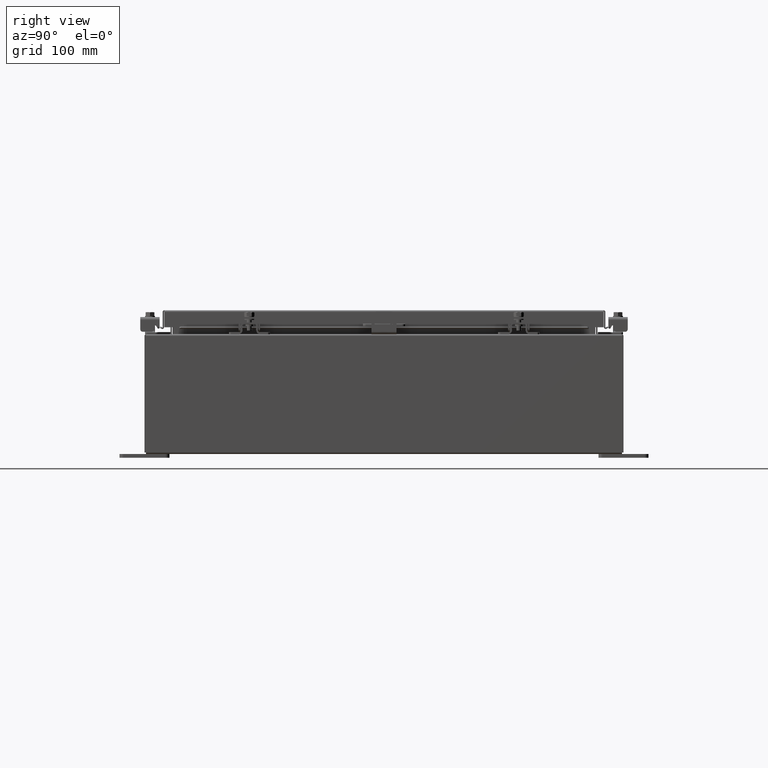
[diagram: clean part render]
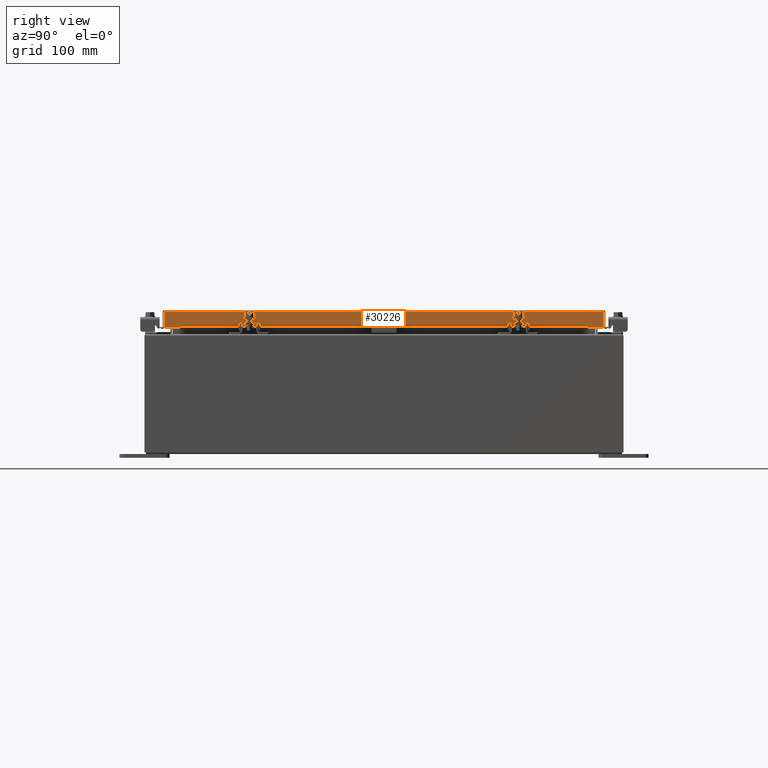
[diagram: same view with one face highlighted and labeled with its STEP entity id]
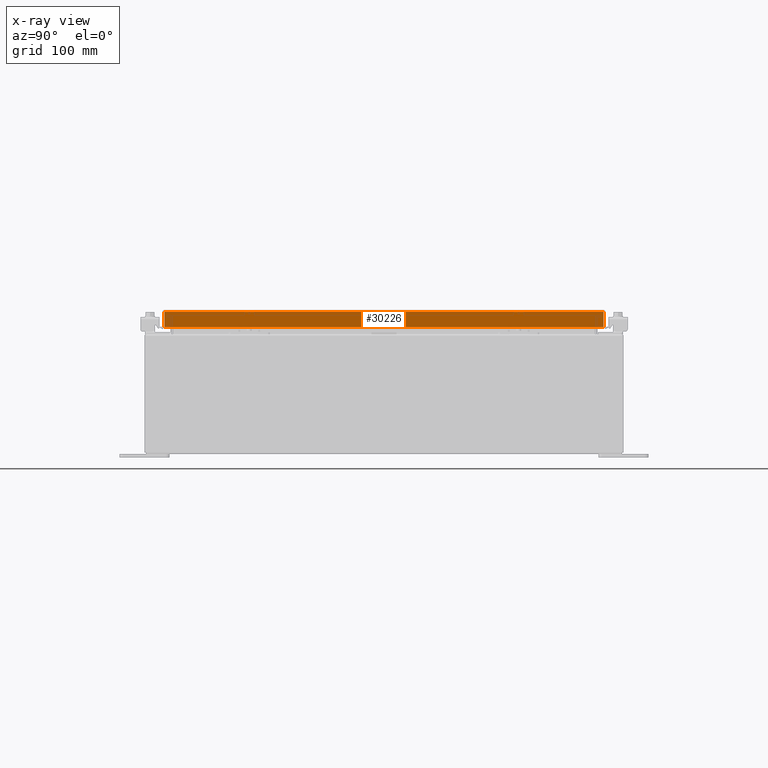
[diagram: x-ray of the same camera — body ghosted, the highlighted face saturated]
A machine part, right view. The second image highlights one B-rep face of the part: STEP entity #30226.
The next image is the same camera in x-ray: the body ghosted, the highlighted face saturated — about 0% of this face is hidden behind the body in this view.
In plain terms, the highlighted planar face has unit normal (1, 0, 0).
Its self-contained STEP definition (entity closure, byte-faithful):
#16 = VERTEX_POINT ( 'NONE', #27087 ) ;
#150 = VERTEX_POINT ( 'NONE', #15157 ) ;
#979 = CARTESIAN_POINT ( 'NONE',  ( 11.07799999999999400, 10.25515786437626900, -0.8500000000000010900 ) ) ;
#1703 = CARTESIAN_POINT ( 'NONE',  ( 11.07799999999999800, -11.00515786437626400, -0.8499999999999999800 ) ) ;
#2746 = ORIENTED_EDGE ( 'NONE', *, *, #21490, .F. ) ;
#2829 = DIRECTION ( 'NONE',  ( 0.0000000000000000000, -1.000000000000000000, 0.0000000000000000000 ) ) ;
#3025 = LINE ( 'NONE', #14540, #16529 ) ;
#4991 = LINE ( 'NONE', #21416, #30440 ) ;
#5306 = AXIS2_PLACEMENT_3D ( 'NONE', #28863, #13587, #31417 ) ;
#5379 = CARTESIAN_POINT ( 'NONE',  ( 11.07799999999999800, 11.00515786437627200, -0.8499999999999999800 ) ) ;
#6369 = EDGE_CURVE ( 'NONE', #22569, #150, #19350, .T. ) ;
#6539 = LINE ( 'NONE', #32058, #13251 ) ;
#6649 = VERTEX_POINT ( 'NONE', #1703 ) ;
#6719 = EDGE_CURVE ( 'NONE', #17883, #16, #3025, .T. ) ;
#9792 = LINE ( 'NONE', #15465, #29307 ) ;
#9911 = EDGE_CURVE ( 'NONE', #6649, #13463, #28906, .T. ) ;
#11026 = PLANE ( 'NONE',  #5306 ) ;
#11199 = EDGE_CURVE ( 'NONE', #150, #13463, #6539, .T. ) ;
#13220 = DIRECTION ( 'NONE',  ( -2.818880942772360100E-015, -6.982962677686267500E-015, 1.000000000000000000 ) ) ;
#13251 = VECTOR ( 'NONE', #16788, 39.37007874015748100 ) ;
#13463 = VERTEX_POINT ( 'NONE', #32398 ) ;
#13587 = DIRECTION ( 'NONE',  ( 1.000000000000000000, 0.0000000000000000000, 2.818880942772360100E-015 ) ) ;
#14447 = DIRECTION ( 'NONE',  ( -2.818880942772360100E-015, -6.982962677686267500E-015, 1.000000000000000000 ) ) ;
#14540 = CARTESIAN_POINT ( 'NONE',  ( 11.07799999999999400, 10.25515786437627200, -0.8500000000000010900 ) ) ;
#15157 = CARTESIAN_POINT ( 'NONE',  ( 11.07799999999999600, 11.00515786437626900, -0.08770000000000026400 ) ) ;
#15162 = EDGE_LOOP ( 'NONE', ( #29876, #17858, #25614, #2746, #25777, #31926 ) ) ;
#15465 = CARTESIAN_POINT ( 'NONE',  ( 11.07799999999999800, -11.09400000000000100, -0.8499999999999999800 ) ) ;
#16149 = VECTOR ( 'NONE', #14447, 39.37007874015748100 ) ;
#16529 = VECTOR ( 'NONE', #29826, 39.37007874015748100 ) ;
#16788 = DIRECTION ( 'NONE',  ( 0.0000000000000000000, -1.000000000000000000, 0.0000000000000000000 ) ) ;
#17858 = ORIENTED_EDGE ( 'NONE', *, *, #30582, .F. ) ;
#17883 = VERTEX_POINT ( 'NONE', #979 ) ;
#19350 = LINE ( 'NONE', #31038, #26916 ) ;
#21416 = CARTESIAN_POINT ( 'NONE',  ( 11.07799999999999800, -11.09400000000000100, -0.8499999999999999800 ) ) ;
#21490 = EDGE_CURVE ( 'NONE', #22569, #17883, #4991, .T. ) ;
#22569 = VERTEX_POINT ( 'NONE', #5379 ) ;
#25614 = ORIENTED_EDGE ( 'NONE', *, *, #6719, .F. ) ;
#25777 = ORIENTED_EDGE ( 'NONE', *, *, #6369, .T. ) ;
#26916 = VECTOR ( 'NONE', #13220, 39.37007874015748100 ) ;
#26936 = FACE_OUTER_BOUND ( 'NONE', #15162, .T. ) ;
#27087 = CARTESIAN_POINT ( 'NONE',  ( 11.07799999999999400, -10.25515786437626400, -0.8500000000000010900 ) ) ;
#28863 = CARTESIAN_POINT ( 'NONE',  ( 11.07799999999999600, 0.0000000000000000000, 3.168943672650545400E-014 ) ) ;
#28906 = LINE ( 'NONE', #29730, #16149 ) ;
#29114 = DIRECTION ( 'NONE',  ( 0.0000000000000000000, -1.000000000000000000, 0.0000000000000000000 ) ) ;
#29307 = VECTOR ( 'NONE', #2829, 39.37007874015748100 ) ;
#29730 = CARTESIAN_POINT ( 'NONE',  ( 11.07799999999999600, -11.00515786437626900, -0.07470000000000015500 ) ) ;
#29826 = DIRECTION ( 'NONE',  ( 0.0000000000000000000, -1.000000000000000000, 0.0000000000000000000 ) ) ;
#29876 = ORIENTED_EDGE ( 'NONE', *, *, #9911, .F. ) ;
#30226 = ADVANCED_FACE ( 'NONE', ( #26936 ), #11026, .T. ) ;
#30440 = VECTOR ( 'NONE', #29114, 39.37007874015748100 ) ;
#30582 = EDGE_CURVE ( 'NONE', #16, #6649, #9792, .T. ) ;
#31038 = CARTESIAN_POINT ( 'NONE',  ( 11.07799999999999600, 11.00515786437626700, 1.081811805491048200E-013 ) ) ;
#31417 = DIRECTION ( 'NONE',  ( 2.818880942772360100E-015, 0.0000000000000000000, -1.000000000000000000 ) ) ;
#31926 = ORIENTED_EDGE ( 'NONE', *, *, #11199, .T. ) ;
#32058 = CARTESIAN_POINT ( 'NONE',  ( 11.07799999999999600, 0.0000000000000000000, -0.08770000000000026400 ) ) ;
#32398 = CARTESIAN_POINT ( 'NONE',  ( 11.07799999999999600, -11.00515786437626900, -0.08770000000000026400 ) ) ;